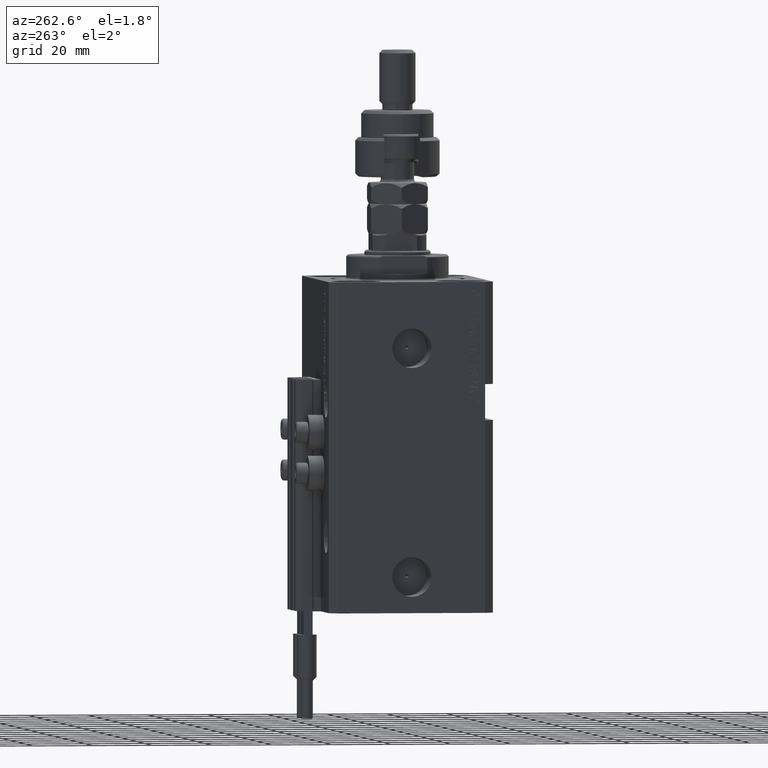
[diagram: clean part render]
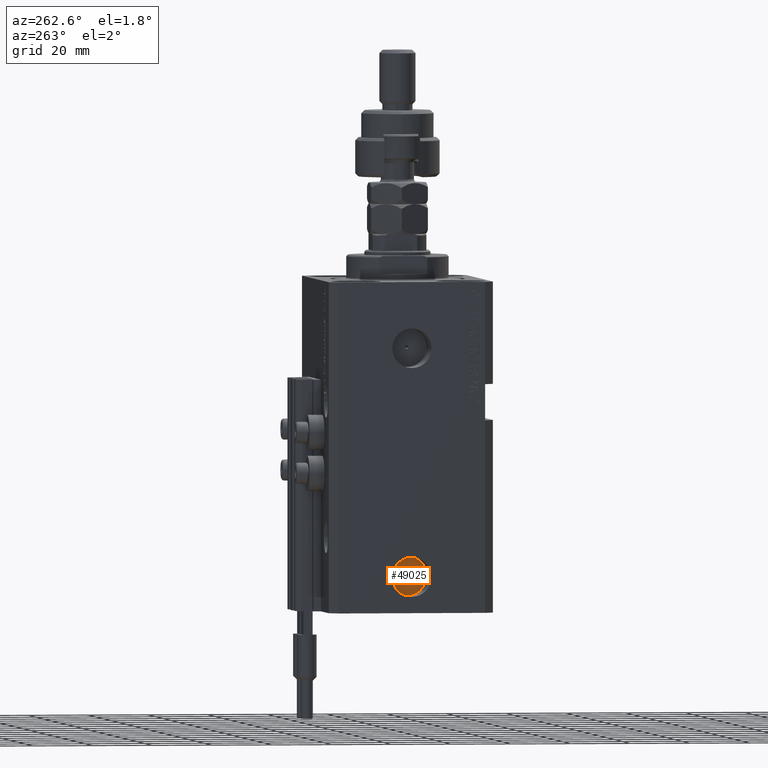
[diagram: same view with one face highlighted and labeled with its STEP entity id]
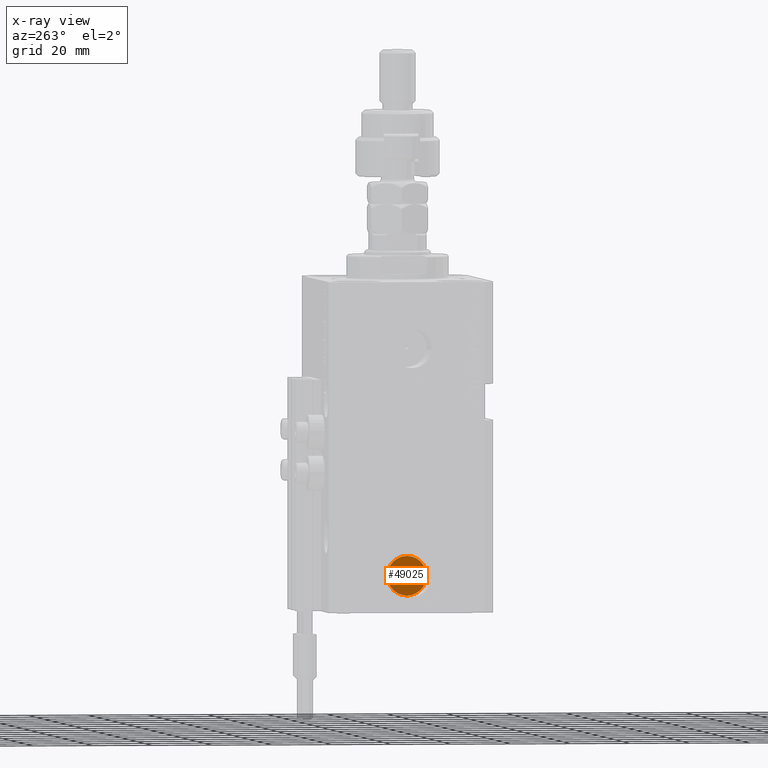
[diagram: x-ray of the same camera — body ghosted, the highlighted face saturated]
A machine part, auxiliary view. The second image highlights one B-rep face of the part: STEP entity #49025.
The next image is the same camera in x-ray: the body ghosted, the highlighted face saturated — about 0% of this face is hidden behind the body in this view.
In plain terms, the highlighted planar face has unit normal (-1, 0, 0).
Its self-contained STEP definition (entity closure, byte-faithful):
#2318 = ORIENTED_EDGE ( 'NONE', *, *, #47105, .T. ) ;
#2561 = CARTESIAN_POINT ( 'NONE',  ( -24.39999999999999147, -1.200153863164406187E-14, -98.00000000000000000 ) ) ;
#6629 = DIRECTION ( 'NONE',  ( 0.000000000000000000, 0.000000000000000000, 1.000000000000000000 ) ) ;
#8327 = DIRECTION ( 'NONE',  ( 0.000000000000000000, 0.000000000000000000, 1.000000000000000000 ) ) ;
#8845 = CARTESIAN_POINT ( 'NONE',  ( -24.39999999999999147, -1.200153863164406187E-14, -98.00000000000000000 ) ) ;
#10166 = VERTEX_POINT ( 'NONE', #51479 ) ;
#10628 = FACE_BOUND ( 'NONE', #16139, .T. ) ;
#11313 = CARTESIAN_POINT ( 'NONE',  ( -24.39999999999999147, -1.200153863164406187E-14, -98.00000000000000000 ) ) ;
#11614 = DIRECTION ( 'NONE',  ( 0.000000000000000000, 0.000000000000000000, 1.000000000000000000 ) ) ;
#13085 = CARTESIAN_POINT ( 'NONE',  ( -24.39999999999999147, -1.192499820669735241E-14, -98.62500000000000000 ) ) ;
#14293 = DIRECTION ( 'NONE',  ( 0.000000000000000000, 0.000000000000000000, 1.000000000000000000 ) ) ;
#15632 = VERTEX_POINT ( 'NONE', #38879 ) ;
#16139 = EDGE_LOOP ( 'NONE', ( #18887, #36191 ) ) ;
#17934 = DIRECTION ( 'NONE',  ( -1.000000000000000000, 0.000000000000000000, 0.000000000000000000 ) ) ;
#18873 = EDGE_CURVE ( 'NONE', #45355, #10166, #33718, .T. ) ;
#18887 = ORIENTED_EDGE ( 'NONE', *, *, #29985, .F. ) ;
#20149 = CARTESIAN_POINT ( 'NONE',  ( -24.39999999999999147, -1.200153863164406187E-14, -98.00000000000000000 ) ) ;
#21848 = PLANE ( 'NONE',  #47333 ) ;
#23809 = DIRECTION ( 'NONE',  ( 0.000000000000000000, 0.000000000000000000, 1.000000000000000000 ) ) ;
#27189 = DIRECTION ( 'NONE',  ( -1.000000000000000000, 0.000000000000000000, 0.000000000000000000 ) ) ;
#27226 = CIRCLE ( 'NONE', #35538, 0.6250000000000005551 ) ;
#29763 = CARTESIAN_POINT ( 'NONE',  ( -24.39999999999999147, -1.200153863164406187E-14, -91.42000000000000171 ) ) ;
#29985 = EDGE_CURVE ( 'NONE', #10166, #45355, #27226, .T. ) ;
#30024 = EDGE_CURVE ( 'NONE', #37354, #15632, #31393, .T. ) ;
#31091 = AXIS2_PLACEMENT_3D ( 'NONE', #8845, #32533, #8327 ) ;
#31393 = CIRCLE ( 'NONE', #40545, 6.580000000000002736 ) ;
#32533 = DIRECTION ( 'NONE',  ( -1.000000000000000000, 0.000000000000000000, 0.000000000000000000 ) ) ;
#32656 = CIRCLE ( 'NONE', #31091, 6.580000000000002736 ) ;
#33718 = CIRCLE ( 'NONE', #47923, 0.6250000000000005551 ) ;
#35538 = AXIS2_PLACEMENT_3D ( 'NONE', #11313, #27189, #6629 ) ;
#35552 = DIRECTION ( 'NONE',  ( -1.000000000000000000, 0.000000000000000000, 0.000000000000000000 ) ) ;
#36191 = ORIENTED_EDGE ( 'NONE', *, *, #18873, .F. ) ;
#37354 = VERTEX_POINT ( 'NONE', #29763 ) ;
#38879 = CARTESIAN_POINT ( 'NONE',  ( -24.39999999999999147, -1.119572103780510441E-14, -104.5800000000000125 ) ) ;
#39473 = CARTESIAN_POINT ( 'NONE',  ( -24.39999999999999147, -1.200153863164406187E-14, -98.00000000000000000 ) ) ;
#40205 = DIRECTION ( 'NONE',  ( -1.000000000000000000, 0.000000000000000000, 0.000000000000000000 ) ) ;
#40545 = AXIS2_PLACEMENT_3D ( 'NONE', #20149, #40205, #23809 ) ;
#43577 = EDGE_LOOP ( 'NONE', ( #46501, #2318 ) ) ;
#45355 = VERTEX_POINT ( 'NONE', #13085 ) ;
#45551 = FACE_OUTER_BOUND ( 'NONE', #43577, .T. ) ;
#46501 = ORIENTED_EDGE ( 'NONE', *, *, #30024, .T. ) ;
#47105 = EDGE_CURVE ( 'NONE', #15632, #37354, #32656, .T. ) ;
#47333 = AXIS2_PLACEMENT_3D ( 'NONE', #2561, #17934, #14293 ) ;
#47923 = AXIS2_PLACEMENT_3D ( 'NONE', #39473, #35552, #11614 ) ;
#49025 = ADVANCED_FACE ( 'NONE', ( #10628, #45551 ), #21848, .T. ) ;
#51479 = CARTESIAN_POINT ( 'NONE',  ( -24.39999999999999147, -1.200153863164406187E-14, -97.37500000000000000 ) ) ;